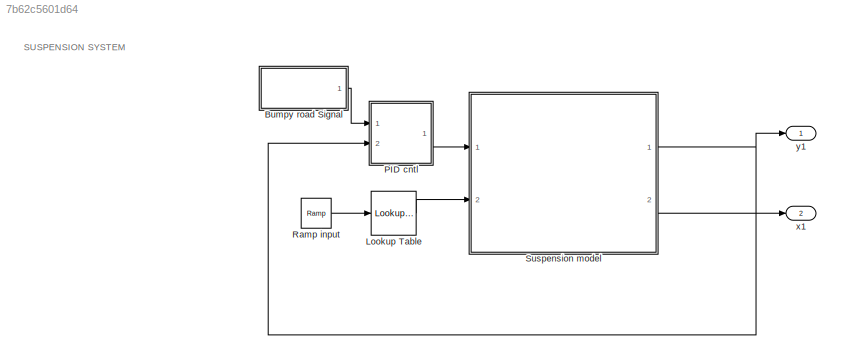
MODEL slx_7b62c5601d64
KIND model
CONFIG AbsTol = auto
CONFIG EnableMultiTasking = off
CONFIG FixedStep = auto
CONFIG MaxStep = 0.0001
CONFIG MinStep = auto
CONFIG RelTol = 1e-3
CONFIG SampleTimeConstraint = Unconstrained
CONFIG SolverName = ode23
CONFIG StartTime = 0.0
CONFIG StopTime = 50
BLOCK [Lookup_n-D]  Lookup Table
  BreakpointsForDimension1 = [0 1]
  InputPortMap = u0
  InternalRulePriority = Speed
  NumberOfTableDimensions = 1
  Ports = [1, 1]
  RndMeth = Simplest
  Table = [0 2]
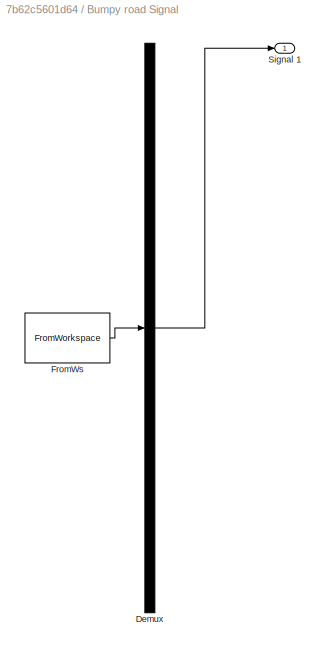
BLOCK [SubSystem] Bumpy road Signal 
  ClipboardFcn = sigbuilder_block('clipboard');
  CloseFcn = sigbuilder_block('close');
  ContinueFcn = sigbuilder_block('continue');
  CopyFcn = sigbuilder_block('copy');
  DeleteFcn = sigbuilder_block('delete');
  LoadFcn = sigbuilder_block('load');
  MaskHideContents = on
  ModelCloseFcn = sigbuilder_block('modelClose');
  NameChangeFcn = sigbuilder_block('namechange');
  OpenFcn = sigbuilder_block('open',[379.5 105.75 550.5 335.25 ]);
  PauseFcn = sigbuilder_block('pause');
  Ports = [0, 1]
  PreSaveFcn = sigbuilder_block('preSave');
  RequestExecContextInheritance = off
  StartFcn = sigbuilder_block('start');
  StopFcn = sigbuilder_block('stop');
  Tag = STV Subsys
BLOCK [Demux] Bumpy road Signal /Demux
  DisplayOption = none
  Outputs = 1
  Ports = [1, 1]
  Tag = STV Demux
BLOCK [FromWorkspace] Bumpy road Signal /FromWs
  Tag = STV FromWs
  VariableName = tuvar
BLOCK [Outport] Bumpy road Signal /Signal 1
  Tag = STV Outport
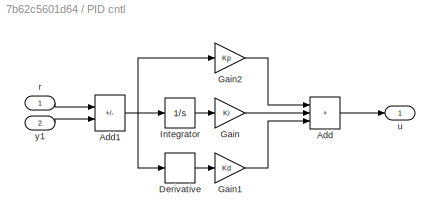
BLOCK [SubSystem] PID cntl
  Ports = [2, 1]
  RequestExecContextInheritance = off
BLOCK [Sum] PID cntl/Add
  IconShape = rectangular
  Inputs = +++
  Ports = [3, 1]
BLOCK [Sum] PID cntl/Add1
  IconShape = rectangular
  Inputs = +-
  Ports = [2, 1]
BLOCK [Derivative] PID cntl/Derivative
BLOCK [Gain] PID cntl/Gain
  Gain = Ki
BLOCK [Gain] PID cntl/Gain1
  Gain = Kd
BLOCK [Gain] PID cntl/Gain2
  Gain = Kp
BLOCK [Integrator] PID cntl/Integrator
  Ports = [1, 1]
BLOCK [Inport] PID cntl/r
BLOCK [Outport] PID cntl/u
BLOCK [Inport] PID cntl/y1
  Port = 2
BLOCK [Reference] Ramp input  REF=simulink/Sources/Ramp
  Ports = [0, 1]
  SourceBlock = simulink/Sources/Ramp
  SourceProductBaseCode = SL
  SourceType = Ramp
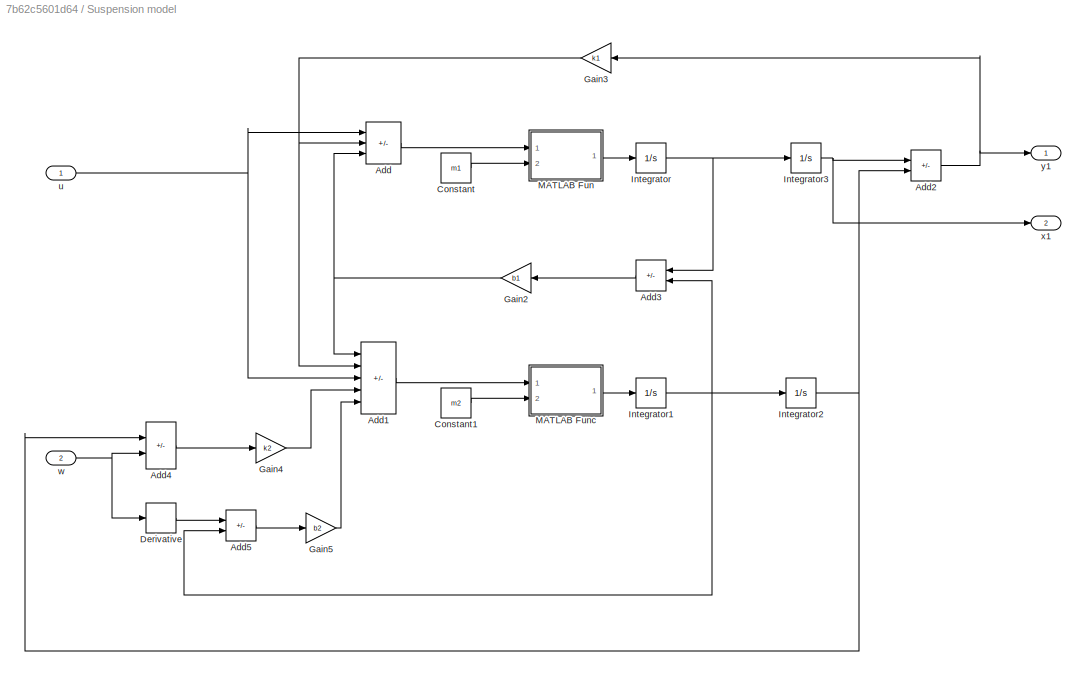
BLOCK [SubSystem] Suspension model
  InitFcn = m1 = 2500;\nm2 = 320;\nk1 = 80000;\nk2 = 500000;\nb1 = 350;\nb2 = 15020;\nKd = 208025;\nKp = 832100;\nKi = 624075;
  Ports = [2, 2]
  RequestExecContextInheritance = off
BLOCK [Sum] Suspension model/Add
  IconShape = rectangular
  Inputs = +--
  Ports = [3, 1]
BLOCK [Sum] Suspension model/Add1
  IconShape = rectangular
  Inputs = ++-++
  Ports = [5, 1]
BLOCK [Sum] Suspension model/Add2
  IconShape = rectangular
  Inputs = +-
  Ports = [2, 1]
BLOCK [Sum] Suspension model/Add3
  IconShape = rectangular
  Inputs = +-
  NameLocation = top
  Ports = [2, 1]
BLOCK [Sum] Suspension model/Add4
  IconShape = rectangular
  Inputs = -+
  Ports = [2, 1]
BLOCK [Sum] Suspension model/Add5
  IconShape = rectangular
  Inputs = +-
  Ports = [2, 1]
BLOCK [Constant] Suspension model/Constant
  Value = m1
BLOCK [Constant] Suspension model/Constant1
  Value = m2
BLOCK [Derivative] Suspension model/Derivative
BLOCK [Gain] Suspension model/Gain2
  Gain = b1
  NameLocation = top
BLOCK [Gain] Suspension model/Gain3
  Gain = k1
  NameLocation = top
BLOCK [Gain] Suspension model/Gain4
  Gain = k2
BLOCK [Gain] Suspension model/Gain5
  Gain = b2
BLOCK [Integrator] Suspension model/Integrator
  Ports = [1, 1]
BLOCK [Integrator] Suspension model/Integrator1
  Ports = [1, 1]
BLOCK [Integrator] Suspension model/Integrator2
  Ports = [1, 1]
BLOCK [Integrator] Suspension model/Integrator3
  Ports = [1, 1]
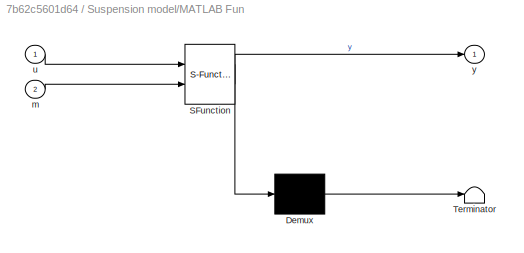
BLOCK [SubSystem] Suspension model/MATLAB Fun
  ErrorFcn = Stateflow.Translate.translate
  PermitHierarchicalResolution = ExplicitOnly
  Ports = [2, 1]
  RequestExecContextInheritance = off
  SFBlockType = MATLAB Function
  TreatAsAtomicUnit = on
BLOCK [Demux] Suspension model/MATLAB Fun/ Demux 
  Outputs = 1
  Ports = [1, 1]
BLOCK [S-Function] Suspension model/MATLAB Fun/ SFunction 
  EnableBusSupport = on
  FunctionName = sf_sfun
  PortCounts = [2 2]
  Ports = [2, 2]
  SFcnIsStateOwnerBlock = off
  SFunctionDeploymentMode = off
  Tag = Stateflow S-Function 2
BLOCK [Terminator] Suspension model/MATLAB Fun/ Terminator 
BLOCK [Inport] Suspension model/MATLAB Fun/m
  Port = 2
BLOCK [Inport] Suspension model/MATLAB Fun/u
BLOCK [Outport] Suspension model/MATLAB Fun/y
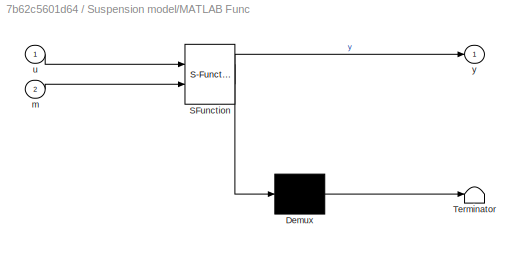
BLOCK [SubSystem] Suspension model/MATLAB Func
  ErrorFcn = Stateflow.Translate.translate
  PermitHierarchicalResolution = ExplicitOnly
  Ports = [2, 1]
  RequestExecContextInheritance = off
  SFBlockType = MATLAB Function
  TreatAsAtomicUnit = on
BLOCK [Demux] Suspension model/MATLAB Func/ Demux 
  Outputs = 1
  Ports = [1, 1]
BLOCK [S-Function] Suspension model/MATLAB Func/ SFunction 
  EnableBusSupport = on
  FunctionName = sf_sfun
  PortCounts = [2 2]
  Ports = [2, 2]
  SFcnIsStateOwnerBlock = off
  SFunctionDeploymentMode = off
  Tag = Stateflow S-Function 1
BLOCK [Terminator] Suspension model/MATLAB Func/ Terminator 
BLOCK [Inport] Suspension model/MATLAB Func/m
  Port = 2
BLOCK [Inport] Suspension model/MATLAB Func/u
BLOCK [Outport] Suspension model/MATLAB Func/y
BLOCK [Inport] Suspension model/u
BLOCK [Inport] Suspension model/w
  Port = 2
BLOCK [Outport] Suspension model/x1
  Port = 2
BLOCK [Outport] Suspension model/y1
BLOCK [Outport] x1
  Port = 2
BLOCK [Outport] y1
ANNOTATION (root): SUSPENSION SYSTEM
LINE  Lookup Table:1 -> Suspension model:2
LINE Bumpy road Signal :1 -> PID cntl:1
NET PID cntl/Add1:1 -> PID cntl/Derivative:1, PID cntl/Gain2:1, PID cntl/Integrator:1
LINE PID cntl/Add:1 -> PID cntl/u:1
LINE PID cntl/Derivative:1 -> PID cntl/Gain1:1
LINE PID cntl/Gain1:1 -> PID cntl/Add:3
LINE PID cntl/Gain2:1 -> PID cntl/Add:1
LINE PID cntl/Gain:1 -> PID cntl/Add:2
LINE PID cntl/Integrator:1 -> PID cntl/Gain:1
LINE PID cntl/r:1 -> PID cntl/Add1:1
LINE PID cntl/y1:1 -> PID cntl/Add1:2
LINE PID cntl:1 -> Suspension model:1
LINE Ramp input:1 ->  Lookup Table:1
LINE Suspension model/Add1:1 -> Suspension model/MATLAB Func:1
NET Suspension model/Add2:1 -> Suspension model/Gain3:1, Suspension model/y1:1
LINE Suspension model/Add3:1 -> Suspension model/Gain2:1
LINE Suspension model/Add4:1 -> Suspension model/Gain4:1
LINE Suspension model/Add5:1 -> Suspension model/Gain5:1
LINE Suspension model/Add:1 -> Suspension model/MATLAB Fun:1
LINE Suspension model/Constant1:1 -> Suspension model/MATLAB Func:2
LINE Suspension model/Constant:1 -> Suspension model/MATLAB Fun:2
LINE Suspension model/Derivative:1 -> Suspension model/Add5:1
NET Suspension model/Gain2:1 -> Suspension model/Add1:1, Suspension model/Add:3
NET Suspension model/Gain3:1 -> Suspension model/Add1:2, Suspension model/Add:2
LINE Suspension model/Gain4:1 -> Suspension model/Add1:4
LINE Suspension model/Gain5:1 -> Suspension model/Add1:5
NET Suspension model/Integrator1:1 -> Suspension model/Add3:2, Suspension model/Add5:2, Suspension model/Integrator2:1
NET Suspension model/Integrator2:1 -> Suspension model/Add2:2, Suspension model/Add4:1
NET Suspension model/Integrator3:1 -> Suspension model/Add2:1, Suspension model/x1:1
NET Suspension model/Integrator:1 -> Suspension model/Add3:1, Suspension model/Integrator3:1
LINE Suspension model/MATLAB Fun:1 -> Suspension model/Integrator:1
LINE Suspension model/MATLAB Func:1 -> Suspension model/Integrator1:1
NET Suspension model/u:1 -> Suspension model/Add1:3, Suspension model/Add:1
NET Suspension model/w:1 -> Suspension model/Add4:2, Suspension model/Derivative:1
NET Suspension model:1 -> PID cntl:2, y1:1
LINE Suspension model:2 -> x1:1
note: NET lines group one-source signal fan-out (src -> all destinations, sorted); 1:1 wires keep LINE
CHART Suspension model/MATLAB Fun states=1 transitions=1
  STATE_LABEL 'eML_blk_kernel()'
  STATE_LABEL 'SCRIPT:\nfunction y = fcn(u, m)\n\ny = u/m;\nend'
CHART Suspension model/MATLAB Func states=1 transitions=1
  STATE_LABEL 'eML_blk_kernel()'
  STATE_LABEL 'SCRIPT:\nfunction y = fcn(u,m)\n\ny = u/m;\n'
CHART  states=0 transitions=0
CHART  states=0 transitions=0
